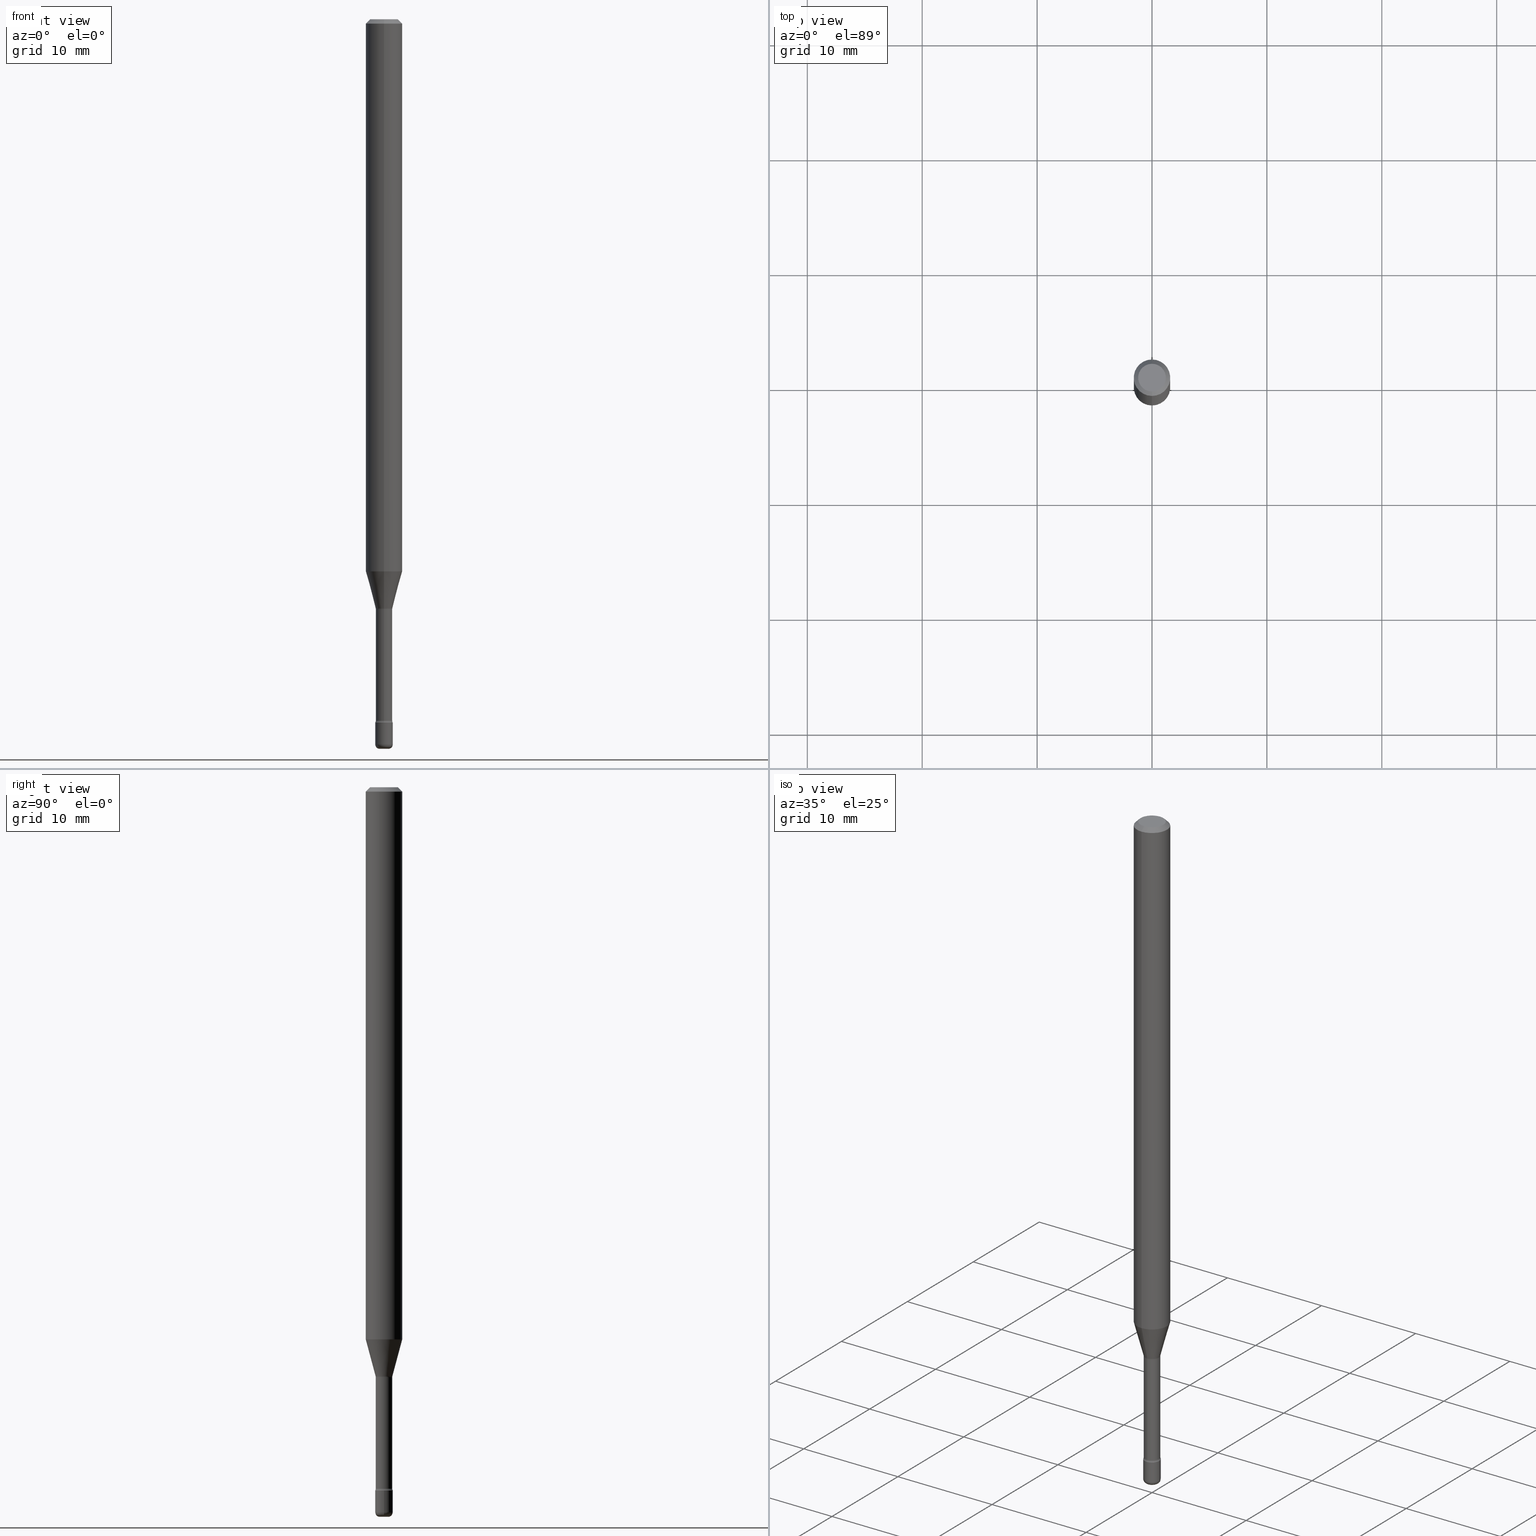
[diagram: canonical four-view strip — front | top / right | iso, engineering-drawing reading convention]
A machine part, canonical four-view strip (front | top / right | iso — engineering-drawing reading convention). The complete STEP part file that produces these views, byte-faithful:
ISO-10303-21;
HEADER;
FILE_DESCRIPTION (( 'STEP AP203' ),
    '1' );
FILE_NAME ('08930.STEP',
    '2024-03-06T20:11:20',
    ( '' ),
    ( '' ),
    'SwSTEP 2.0',
    'SolidWorks 2023',
    '' );
FILE_SCHEMA (( 'CONFIG_CONTROL_DESIGN' ));
ENDSEC;

DATA;
#1 = EDGE_LOOP ( 'NONE', ( #109, #43 ) ) ;
#2 = CARTESIAN_POINT ( 'NONE',  ( 1.047444401653551349E-16, 0.01499999999999127379, -2.500000000000000000 ) ) ;
#3 = ORIENTED_EDGE ( 'NONE', *, *, #47, .T. ) ;
#4 = FACE_OUTER_BOUND ( 'NONE', #403, .T. ) ;
#5 = PERSON_AND_ORGANIZATION ( #207, #392 ) ;
#6 = ORIENTED_EDGE ( 'NONE', *, *, #490, .F. ) ;
#7 = EDGE_CURVE ( 'NONE', #286, #91, #39, .T. ) ;
#8 = CARTESIAN_POINT ( 'NONE',  ( 0.000000000000000000, 0.000000000000000000, 0.000000000000000000 ) ) ;
#9 = PERSON_AND_ORGANIZATION ( #207, #392 ) ;
#10 = ORIENTED_EDGE ( 'NONE', *, *, #254, .F. ) ;
#11 = AXIS2_PLACEMENT_3D ( 'NONE', #358, #279, #313 ) ;
#12 = CIRCLE ( 'NONE', #181, 0.04749999999999998668 ) ;
#13 = CARTESIAN_POINT ( 'NONE',  ( 5.893641306739720749E-29, -8.414381978262906701E-15, -2.410000000000000142 ) ) ;
#14 = ORIENTED_EDGE ( 'NONE', *, *, #246, .F. ) ;
#15 = DIRECTION ( 'NONE',  ( 4.937700262164548831E-15, 0.7071067811865452413, -0.7071067811865497932 ) ) ;
#16 = ORIENTED_EDGE ( 'NONE', *, *, #51, .F. ) ;
#17 = CARTESIAN_POINT ( 'NONE',  ( 6.113672015462842613E-29, -8.728703347107864943E-15, -2.500000000000000000 ) ) ;
#18 = ADVANCED_FACE ( 'NONE', ( #386 ), #465, .T. ) ;
#19 = ORIENTED_EDGE ( 'NONE', *, *, #350, .T. ) ;
#20 = FACE_OUTER_BOUND ( 'NONE', #273, .T. ) ;
#21 = SECURITY_CLASSIFICATION ( '', '', #221 ) ;
#22 = CALENDAR_DATE ( 2024, 6, 3 ) ;
#23 = DIRECTION ( 'NONE',  ( 1.000000000000000000, -6.982962677686266711E-15, 4.876176775795935793E-29 ) ) ;
#24 = DIRECTION ( 'NONE',  ( -1.000000000000000000, 7.105427357600996337E-15, 0.000000000000000000 ) ) ;
#25 = DIRECTION ( 'NONE',  ( -6.982962677686265922E-15, -1.000000000000000000, 3.483106191921935554E-15 ) ) ;
#26 = DIRECTION ( 'NONE',  ( -2.445468806185136597E-29, 3.491481338843145583E-15, 1.000000000000000000 ) ) ;
#27 = DIRECTION ( 'NONE',  ( 6.982962677686265922E-15, 1.000000000000000000, -3.491444804258467311E-15 ) ) ;
#28 = EDGE_CURVE ( 'NONE', #225, #93, #94, .T. ) ;
#29 = APPROVAL_STATUS ( 'not_yet_approved' ) ;
#30 = CARTESIAN_POINT ( 'NONE',  ( 4.944676269635571097E-29, -7.059687238041231398E-15, -2.021974787463811207 ) ) ;
#31 = DIRECTION ( 'NONE',  ( 1.000000000000000000, -6.982962677686265922E-15, 4.876176775795935793E-29 ) ) ;
#32 = PRODUCT ( '08930', '08930', '', ( #189 ) ) ;
#33 = TOROIDAL_SURFACE ( 'NONE', #418, 0.04320000000000001616, 0.01499999999999994740 ) ;
#34 = CIRCLE ( 'NONE', #173, 0.02999999999999999889 ) ;
#35 = CARTESIAN_POINT ( 'NONE',  ( 5.893641306739720749E-29, -8.414381978262906701E-15, -2.410000000000000142 ) ) ;
#36 = CYLINDRICAL_SURFACE ( 'NONE', #438, 0.06250000000000000000 ) ;
#37 = EDGE_CURVE ( 'NONE', #236, #427, #355, .T. ) ;
#38 = DIRECTION ( 'NONE',  ( -6.982962677686266711E-15, -1.000000000000000000, 3.491444804258465733E-15 ) ) ;
#39 = CIRCLE ( 'NONE', #172, 0.06250000000000000000 ) ;
#40 = DIRECTION ( 'NONE',  ( -2.445494318149261734E-29, 3.491444804258467311E-15, 1.000000000000000000 ) ) ;
#41 = PRODUCT_RELATED_PRODUCT_CATEGORY ( 'detail', '', ( #32 ) ) ;
#42 = PERSON_AND_ORGANIZATION_ROLE ( 'design_supplier' ) ;
#43 = ORIENTED_EDGE ( 'NONE', *, *, #464, .F. ) ;
#44 = COORDINATED_UNIVERSAL_TIME_OFFSET ( 5, 0, .BEHIND. ) ;
#45 = EDGE_LOOP ( 'NONE', ( #232, #162 ) ) ;
#46 = FACE_OUTER_BOUND ( 'NONE', #270, .T. ) ;
#47 = EDGE_CURVE ( 'NONE', #531, #427, #249, .T. ) ;
#48 = ORIENTED_EDGE ( 'NONE', *, *, #268, .T. ) ;
#49 = DIRECTION ( 'NONE',  ( -2.445494318149261734E-29, 3.491444804258467311E-15, 1.000000000000000000 ) ) ;
#50 = ORIENTED_EDGE ( 'NONE', *, *, #335, .F. ) ;
#51 = EDGE_CURVE ( 'NONE', #411, #203, #425, .T. ) ;
#52 = CARTESIAN_POINT ( 'NONE',  ( 5.876218125076356369E-29, -8.389506812272643488E-15, -2.402875394747777893 ) ) ;
#53 = CALENDAR_DATE ( 2024, 6, 3 ) ;
#54 = ORIENTED_EDGE ( 'NONE', *, *, #539, .T. ) ;
#55 = FACE_OUTER_BOUND ( 'NONE', #528, .T. ) ;
#56 = DIRECTION ( 'NONE',  ( -6.982962677686265922E-15, -1.000000000000000000, 4.370956789862821150E-15 ) ) ;
#57 = CONICAL_SURFACE ( 'NONE', #391, 0.02871111260566398468, 0.2617993877991500740 ) ;
#58 = LOCAL_TIME ( 15, 11, 20.00000000000000000, #538 ) ;
#59 = EDGE_CURVE ( 'NONE', #344, #236, #84, .T. ) ;
#60 = ORIENTED_EDGE ( 'NONE', *, *, #284, .T. ) ;
#61 = APPLICATION_CONTEXT ( 'configuration controlled 3d designs of mechanical parts and assemblies' ) ;
#62 = VERTEX_POINT ( 'NONE', #100 ) ;
#63 = COORDINATED_UNIVERSAL_TIME_OFFSET ( 5, 0, .BEHIND. ) ;
#64 = CARTESIAN_POINT ( 'NONE',  ( 0.000000000000000000, 0.000000000000000000, 0.000000000000000000 ) ) ;
#65 = CARTESIAN_POINT ( 'NONE',  ( -1.169113584055446105E-44, 1.669184350826100908E-30, 4.780733988912460139E-16 ) ) ;
#66 = AXIS2_PLACEMENT_3D ( 'NONE', #455, #380, #31 ) ;
#67 = CARTESIAN_POINT ( 'NONE',  ( 4.935233746620405795E-29, -7.046058579878147233E-15, -2.018092501787273285 ) ) ;
#68 = CIRCLE ( 'NONE', #95, 0.01500000000000000291 ) ;
#69 = CARTESIAN_POINT ( 'NONE',  ( 5.876156823005487003E-29, -8.389594600327222537E-15, -2.402875394747777893 ) ) ;
#70 = CARTESIAN_POINT ( 'NONE',  ( 6.076989983370064174E-29, -8.676331127025216680E-15, -2.484999999999999876 ) ) ;
#71 = EDGE_CURVE ( 'NONE', #329, #460, #444, .T. ) ;
#72 = CARTESIAN_POINT ( 'NONE',  ( -0.02999999999999999889, -8.332237756090568145E-15, -2.410000000000000142 ) ) ;
#73 = ADVANCED_FACE ( 'NONE', ( #342 ), #230, .F. ) ;
#74 = DATE_TIME_ROLE ( 'classification_date' ) ;
#75 = DIRECTION ( 'NONE',  ( -2.445468806185136877E-29, 3.491481338843145188E-15, 1.000000000000000000 ) ) ;
#76 = CARTESIAN_POINT ( 'NONE',  ( -4.364351673553912750E-16, -0.06250000000000005551, -0.01499999999999981036 ) ) ;
#77 = VECTOR ( 'NONE', #188, 39.37007874015748143 ) ;
#78 = CC_DESIGN_APPROVAL ( #89, ( #21 ) ) ;
#79 = EDGE_CURVE ( 'NONE', #62, #361, #493, .T. ) ;
#80 = DIRECTION ( 'NONE',  ( -2.445494318149261734E-29, 3.491444804258467311E-15, 1.000000000000000000 ) ) ;
#81 = DIRECTION ( 'NONE',  ( -4.851104656540965064E-15, -0.7071067811865501263, -0.7071067811865449082 ) ) ;
#82 = DIRECTION ( 'NONE',  ( -6.982962677686266711E-15, -1.000000000000000000, 0.000000000000000000 ) ) ;
#83 = DIRECTION ( 'NONE',  ( -2.445494318149261734E-29, 3.491444804258467311E-15, 1.000000000000000000 ) ) ;
#84 = CIRCLE ( 'NONE', #375, 0.01500000000000000291 ) ;
#85 = FACE_OUTER_BOUND ( 'NONE', #244, .T. ) ;
#86 = AXIS2_PLACEMENT_3D ( 'NONE', #516, #80, #38 ) ;
#87 = APPROVAL_DATE_TIME ( #571, #197 ) ;
#88 = ORIENTED_EDGE ( 'NONE', *, *, #37, .F. ) ;
#89 = APPROVAL ( #29, 'UNSPECIFIED' ) ;
#90 = APPLICATION_PROTOCOL_DEFINITION ( 'international standard', 'config_control_design', 1994, #61 ) ;
#91 = VERTEX_POINT ( 'NONE', #415 ) ;
#92 = CARTESIAN_POINT ( 'NONE',  ( 4.944727854183811363E-29, -7.059613366032142190E-15, -2.021974787463811207 ) ) ;
#93 = VERTEX_POINT ( 'NONE', #327 ) ;
#94 = CIRCLE ( 'NONE', #452, 0.01500000000000001853 ) ;
#95 = AXIS2_PLACEMENT_3D ( 'NONE', #17, #340, #543 ) ;
#96 = VERTEX_POINT ( 'NONE', #512 ) ;
#97 = CARTESIAN_POINT ( 'NONE',  ( 3.668241477223899538E-31, -5.237167206387711025E-17, -0.01500000000000002720 ) ) ;
#98 = CALENDAR_DATE ( 2024, 6, 3 ) ;
#99 = ORIENTED_EDGE ( 'NONE', *, *, #121, .F. ) ;
#100 = CARTESIAN_POINT ( 'NONE',  ( 3.240469674128031254E-16, 0.02871111260565693823, -2.018092501787273285 ) ) ;
#101 = ORIENTED_EDGE ( 'NONE', *, *, #121, .T. ) ;
#102 = ADVANCED_FACE ( 'NONE', ( #239 ), #180, .F. ) ;
#103 = CONICAL_SURFACE ( 'NONE', #437, 0.02871111260566398468, 0.2617993877991500740 ) ;
#104 = DIRECTION ( 'NONE',  ( -6.982962677686267499E-15, -1.000000000000000000, 0.000000000000000000 ) ) ;
#105 = CIRCLE ( 'NONE', #503, 0.02820000000000006876 ) ;
#106 = CARTESIAN_POINT ( 'NONE',  ( -4.364351673553916201E-16, -0.06250000000000000000, 6.962886991574002702E-16 ) ) ;
#107 = CIRCLE ( 'NONE', #561, 0.02999999999999999889 ) ;
#108 = ORIENTED_EDGE ( 'NONE', *, *, #79, .T. ) ;
#109 = ORIENTED_EDGE ( 'NONE', *, *, #114, .F. ) ;
#110 = LINE ( 'NONE', #106, #364 ) ;
#111 = DIRECTION ( 'NONE',  ( -1.000000000000000000, 6.982962677686265922E-15, -4.876176775795935793E-29 ) ) ;
#112 = ORIENTED_EDGE ( 'NONE', *, *, #186, .F. ) ;
#113 = CARTESIAN_POINT ( 'NONE',  ( 2.131628207280887687E-16, 0.02999999999999155426, -2.410000000000000142 ) ) ;
#114 = EDGE_CURVE ( 'NONE', #379, #332, #347, .T. ) ;
#115 = AXIS2_PLACEMENT_3D ( 'NONE', #64, #241, #23 ) ;
#116 = CARTESIAN_POINT ( 'NONE',  ( 5.876156823005487003E-29, -8.389594600327222537E-15, -2.402875394747777893 ) ) ;
#117 = DIRECTION ( 'NONE',  ( -2.445494318149261734E-29, 3.491444804258467311E-15, 1.000000000000000000 ) ) ;
#118 = DIRECTION ( 'NONE',  ( -6.982962677686261977E-15, -1.000000000000000000, 0.000000000000000000 ) ) ;
#119 = ADVANCED_FACE ( 'NONE', ( #167 ), #33, .F. ) ;
#120 = CARTESIAN_POINT ( 'NONE',  ( 3.668241477223899538E-31, -5.237167206387711025E-17, -0.01500000000000002720 ) ) ;
#121 = EDGE_CURVE ( 'NONE', #62, #286, #209, .T. ) ;
#122 = DIRECTION ( 'NONE',  ( -6.982962677686266711E-15, -1.000000000000000000, 3.491444804258467311E-15 ) ) ;
#123 = CIRCLE ( 'NONE', #308, 0.03000000000000000583 ) ;
#124 = AXIS2_PLACEMENT_3D ( 'NONE', #211, #480, #556 ) ;
#125 = DIRECTION ( 'NONE',  ( -2.445494318149261734E-29, 3.491444804258467311E-15, 1.000000000000000000 ) ) ;
#126 = DIRECTION ( 'NONE',  ( -1.807323732225328562E-15, -0.2588190451025179639, 0.9659258262890690894 ) ) ;
#127 = DIRECTION ( 'NONE',  ( -6.982962677686265133E-15, -1.000000000000000000, 0.000000000000000000 ) ) ;
#128 = DIRECTION ( 'NONE',  ( -2.445494318149261734E-29, 3.491444804258467311E-15, 1.000000000000000000 ) ) ;
#129 = ORIENTED_EDGE ( 'NONE', *, *, #284, .F. ) ;
#130 = EDGE_CURVE ( 'NONE', #427, #531, #123, .T. ) ;
#131 = AXIS2_PLACEMENT_3D ( 'NONE', #525, #449, #141 ) ;
#132 = APPROVAL_PERSON_ORGANIZATION ( #9, #197, #192 ) ;
#133 = PERSON_AND_ORGANIZATION_ROLE ( 'classification_officer' ) ;
#134 = VERTEX_POINT ( 'NONE', #72 ) ;
#135 = DIRECTION ( 'NONE',  ( -2.445468806185136597E-29, 3.491481338843145583E-15, 1.000000000000000000 ) ) ;
#136 = ORIENTED_EDGE ( 'NONE', *, *, #71, .T. ) ;
#137 = DIRECTION ( 'NONE',  ( -2.445494318149261734E-29, 3.491444804258467311E-15, 1.000000000000000000 ) ) ;
#138 = ADVANCED_FACE ( 'NONE', ( #55 ), #515, .T. ) ;
#139 = DIRECTION ( 'NONE',  ( 0.000000000000000000, 0.000000000000000000, 1.000000000000000000 ) ) ;
#140 = ORIENTED_EDGE ( 'NONE', *, *, #350, .F. ) ;
#141 = DIRECTION ( 'NONE',  ( -6.982962677686265133E-15, -1.000000000000000000, 0.000000000000000000 ) ) ;
#142 = AXIS2_PLACEMENT_3D ( 'NONE', #70, #26, #208 ) ;
#143 = DIRECTION ( 'NONE',  ( -6.982962677686265922E-15, -1.000000000000000000, 0.000000000000000000 ) ) ;
#144 = VECTOR ( 'NONE', #75, 39.37007874015748143 ) ;
#145 = VERTEX_POINT ( 'NONE', #163 ) ;
#146 = CARTESIAN_POINT ( 'NONE',  ( 5.893579822906179826E-29, -8.414470026611981678E-15, -2.410000000000000142 ) ) ;
#147 = COORDINATED_UNIVERSAL_TIME_OFFSET ( 5, 0, .BEHIND. ) ;
#148 = ORIENTED_EDGE ( 'NONE', *, *, #28, .T. ) ;
#149 = EDGE_CURVE ( 'NONE', #329, #379, #559, .T. ) ;
#150 = ORIENTED_EDGE ( 'NONE', *, *, #37, .T. ) ;
#151 = CALENDAR_DATE ( 2024, 6, 3 ) ;
#152 = AXIS2_PLACEMENT_3D ( 'NONE', #13, #281, #143 ) ;
#153 = EDGE_LOOP ( 'NONE', ( #229, #54, #16, #140 ) ) ;
#154 = AXIS2_PLACEMENT_3D ( 'NONE', #424, #301, #545 ) ;
#155 = DIRECTION ( 'NONE',  ( -6.982962677686266711E-15, -1.000000000000000000, 3.491444804258465733E-15 ) ) ;
#156 = ADVANCED_FACE ( 'NONE', ( #4 ), #202, .T. ) ;
#157 = EDGE_CURVE ( 'NONE', #460, #361, #304, .T. ) ;
#158 = ORIENTED_EDGE ( 'NONE', *, *, #59, .F. ) ;
#159 = CARTESIAN_POINT ( 'NONE',  ( 4.364351673553919652E-16, 0.06249999999999995143, -0.01500000000000024578 ) ) ;
#160 = CARTESIAN_POINT ( 'NONE',  ( 6.113672015462842613E-29, -8.728703347107864943E-15, -2.500000000000000000 ) ) ;
#161 = CC_DESIGN_PERSON_AND_ORGANIZATION_ASSIGNMENT ( #5, #402, ( #32 ) ) ;
#162 = ORIENTED_EDGE ( 'NONE', *, *, #558, .T. ) ;
#163 = CARTESIAN_POINT ( 'NONE',  ( -3.773273898774339776E-16, -0.04749999999999998668, 1.387527056123654977E-16 ) ) ;
#164 = FACE_OUTER_BOUND ( 'NONE', #194, .T. ) ;
#165 = AXIS2_PLACEMENT_3D ( 'NONE', #146, #196, #330 ) ;
#166 = AXIS2_PLACEMENT_3D ( 'NONE', #245, #252, #349 ) ;
#167 = FACE_OUTER_BOUND ( 'NONE', #462, .T. ) ;
#168 = DIRECTION ( 'NONE',  ( -6.982962677686265133E-15, -1.000000000000000000, 3.491444804258467311E-15 ) ) ;
#169 = EDGE_CURVE ( 'NONE', #134, #250, #362, .T. ) ;
#170 = CARTESIAN_POINT ( 'NONE',  ( 4.944727854183811363E-29, -7.059613366032142190E-15, -2.021974787463811207 ) ) ;
#171 = LINE ( 'NONE', #354, #309 ) ;
#172 = AXIS2_PLACEMENT_3D ( 'NONE', #544, #548, #56 ) ;
#173 = AXIS2_PLACEMENT_3D ( 'NONE', #220, #311, #555 ) ;
#174 = CARTESIAN_POINT ( 'NONE',  ( 4.626852402419585505E-29, -6.605780950137001921E-15, -1.891990657300387735 ) ) ;
#175 = CARTESIAN_POINT ( 'NONE',  ( 4.440892098501091590E-16, 0.06249999999999995143, -0.01500000000000024578 ) ) ;
#176 = ADVANCED_FACE ( 'NONE', ( #346 ), #533, .T. ) ;
#177 = LINE ( 'NONE', #307, #485 ) ;
#178 = ORIENTED_EDGE ( 'NONE', *, *, #335, .T. ) ;
#179 =( NAMED_UNIT ( * ) SI_UNIT ( $, .STERADIAN. ) SOLID_ANGLE_UNIT ( ) );
#180 = TOROIDAL_SURFACE ( 'NONE', #484, 0.04320000000000001616, 0.01499999999999994740 ) ;
#181 = AXIS2_PLACEMENT_3D ( 'NONE', #393, #125, #216 ) ;
#182 = DIRECTION ( 'NONE',  ( -6.982962677686265133E-15, -1.000000000000000000, 0.000000000000000000 ) ) ;
#183 = TOROIDAL_SURFACE ( 'NONE', #536, 0.04320000000000000229, 0.01500000000000002373 ) ;
#184 = PERSON_AND_ORGANIZATION_ROLE ( 'creator' ) ;
#185 = ORIENTED_EDGE ( 'NONE', *, *, #130, .T. ) ;
#186 = EDGE_CURVE ( 'NONE', #62, #225, #266, .T. ) ;
#187 = ORIENTED_EDGE ( 'NONE', *, *, #494, .T. ) ;
#188 = DIRECTION ( 'NONE',  ( -2.445494318149262015E-29, 3.491444804258467311E-15, 1.000000000000000000 ) ) ;
#189 = MECHANICAL_CONTEXT ( 'NONE', #201, 'mechanical' ) ;
#190 = ORIENTED_EDGE ( 'NONE', *, *, #317, .F. ) ;
#191 = DIRECTION ( 'NONE',  ( -2.445494318149261734E-29, 3.491444804258467311E-15, 1.000000000000000000 ) ) ;
#192 = APPROVAL_ROLE ( '' ) ;
#193 = CIRCLE ( 'NONE', #267, 0.02820000000000000284 ) ;
#194 = EDGE_LOOP ( 'NONE', ( #471, #374, #150, #511 ) ) ;
#195 = DIRECTION ( 'NONE',  ( -2.445468806185136877E-29, 3.491481338843145188E-15, 1.000000000000000000 ) ) ;
#196 = DIRECTION ( 'NONE',  ( -2.445468806185136597E-29, 3.491481338843145583E-15, 1.000000000000000000 ) ) ;
#197 = APPROVAL ( #526, 'UNSPECIFIED' ) ;
#198 = CARTESIAN_POINT ( 'NONE',  ( -3.016639876759972611E-16, -0.04320000000000705914, -2.021974787463810763 ) ) ;
#199 = ORIENTED_EDGE ( 'NONE', *, *, #464, .T. ) ;
#200 = DIRECTION ( 'NONE',  ( 7.105427357601001859E-15, 1.000000000000000000, -3.491481338843145583E-15 ) ) ;
#201 = APPLICATION_CONTEXT ( 'configuration controlled 3d designs of mechanical parts and assemblies' ) ;
#202 = CONICAL_SURFACE ( 'NONE', #519, 0.06250000000000000000, 0.7853981633974485010 ) ;
#203 = VERTEX_POINT ( 'NONE', #175 ) ;
#204 = ORIENTED_EDGE ( 'NONE', *, *, #317, .T. ) ;
#205 = FACE_OUTER_BOUND ( 'NONE', #486, .T. ) ;
#206 = DIRECTION ( 'NONE',  ( 1.000000000000000000, -6.982962677686266711E-15, 4.876176775795935793E-29 ) ) ;
#207 = PERSON ( 'UNSPECIFIED', 'UNSPECIFIED', 'UNSPECIFIED', ('UNSPECIFIED'), ('UNSPECIFIED'), ('UNSPECIFIED') ) ;
#208 = DIRECTION ( 'NONE',  ( 1.000000000000000000, -6.982962677686299054E-15, 0.000000000000000000 ) ) ;
#209 = LINE ( 'NONE', #473, #336 ) ;
#210 = CC_DESIGN_PERSON_AND_ORGANIZATION_ASSIGNMENT ( #269, #184, ( #278 ) ) ;
#211 = CARTESIAN_POINT ( 'NONE',  ( 4.944676269635571097E-29, -7.059687238041231398E-15, -2.021974787463811207 ) ) ;
#212 = CIRCLE ( 'NONE', #217, 0.02820000000000000284 ) ;
#213 = APPROVAL_PERSON_ORGANIZATION ( #497, #401, #231 ) ;
#214 = FACE_OUTER_BOUND ( 'NONE', #420, .T. ) ;
#215 = CARTESIAN_POINT ( 'NONE',  ( 2.094888803306469144E-16, 0.02999999999999158548, -2.410000000000000142 ) ) ;
#216 = DIRECTION ( 'NONE',  ( -6.982962677686265133E-15, -1.000000000000000000, 3.491444804258467311E-15 ) ) ;
#217 = AXIS2_PLACEMENT_3D ( 'NONE', #92, #274, #450 ) ;
#218 = TOROIDAL_SURFACE ( 'NONE', #124, 0.04320000000000000229, 0.01500000000000002373 ) ;
#219 = CC_DESIGN_DATE_AND_TIME_ASSIGNMENT ( #303, #74, ( #21 ) ) ;
#220 = CARTESIAN_POINT ( 'NONE',  ( 5.893579822906179826E-29, -8.414470026611981678E-15, -2.410000000000000142 ) ) ;
#221 = SECURITY_CLASSIFICATION_LEVEL ( 'unclassified' ) ;
#222 = ORIENTED_EDGE ( 'NONE', *, *, #169, .F. ) ;
#223 = DATE_AND_TIME ( #53, #58 ) ;
#224 = ADVANCED_FACE ( 'NONE', ( #85 ), #277, .T. ) ;
#225 = VERTEX_POINT ( 'NONE', #565 ) ;
#226 = LINE ( 'NONE', #237, #570 ) ;
#227 = CLOSED_SHELL ( 'NONE', ( #18, #238, #176, #261, #312, #138 ) ) ;
#228 = AXIS2_PLACEMENT_3D ( 'NONE', #291, #200, #24 ) ;
#229 = ORIENTED_EDGE ( 'NONE', *, *, #490, .T. ) ;
#230 = PLANE ( 'NONE',  #316 ) ;
#231 = APPROVAL_ROLE ( '' ) ;
#232 = ORIENTED_EDGE ( 'NONE', *, *, #439, .T. ) ;
#233 = ADVANCED_FACE ( 'NONE', ( #404 ), #57, .T. ) ;
#234 = DIRECTION ( 'NONE',  ( -6.982962677686266711E-15, -1.000000000000000000, 0.000000000000000000 ) ) ;
#235 = CARTESIAN_POINT ( 'NONE',  ( 0.000000000000000000, 0.000000000000000000, 0.000000000000000000 ) ) ;
#236 = VERTEX_POINT ( 'NONE', #569 ) ;
#237 = CARTESIAN_POINT ( 'NONE',  ( -0.03000000000000000583, 2.131628207280300972E-16, -1.475680527076471882E-30 ) ) ;
#238 = ADVANCED_FACE ( 'NONE', ( #370 ), #398, .T. ) ;
#239 = FACE_OUTER_BOUND ( 'NONE', #500, .T. ) ;
#240 = AXIS2_PLACEMENT_3D ( 'NONE', #443, #436, #168 ) ;
#241 = DIRECTION ( 'NONE',  ( -2.445468806185136597E-29, 3.491481338843145583E-15, 1.000000000000000000 ) ) ;
#242 = EDGE_LOOP ( 'NONE', ( #423, #48, #448, #10 ) ) ;
#243 = LINE ( 'NONE', #334, #144 ) ;
#244 = EDGE_LOOP ( 'NONE', ( #315, #508, #178, #276 ) ) ;
#245 = CARTESIAN_POINT ( 'NONE',  ( 6.076989983370064174E-29, -8.676331127025216680E-15, -2.484999999999999876 ) ) ;
#246 = EDGE_CURVE ( 'NONE', #225, #62, #469, .T. ) ;
#247 = ADVANCED_BREP_SHAPE_REPRESENTATION ( '08930', ( #406, #396, #348 ), #513 ) ;
#248 = SHAPE_DEFINITION_REPRESENTATION ( #560, #247 ) ;
#249 = CIRCLE ( 'NONE', #142, 0.03000000000000000583 ) ;
#250 = VERTEX_POINT ( 'NONE', #489 ) ;
#251 = CIRCLE ( 'NONE', #240, 0.04749999999999998668 ) ;
#252 = DIRECTION ( 'NONE',  ( -2.445468806185136597E-29, 3.491481338843145583E-15, 1.000000000000000000 ) ) ;
#253 = DIRECTION ( 'NONE',  ( -2.445468806185136597E-29, 3.491481338843145583E-15, 1.000000000000000000 ) ) ;
#254 = EDGE_CURVE ( 'NONE', #361, #93, #212, .T. ) ;
#255 = CARTESIAN_POINT ( 'NONE',  ( 0.01500000000000000291, -8.781075567190510050E-15, -2.484999999999999876 ) ) ;
#256 = DIRECTION ( 'NONE',  ( -2.445468806185136597E-29, 3.491481338843145583E-15, 1.000000000000000000 ) ) ;
#257 = PRODUCT_DEFINITION ( 'UNKNOWN', '', #278, #532 ) ;
#258 = DIRECTION ( 'NONE',  ( -2.445494318149262015E-29, 3.491444804258467311E-15, 1.000000000000000000 ) ) ;
#259 = CARTESIAN_POINT ( 'NONE',  ( -2.094888803305288318E-16, -0.03000000000000838801, -2.410000000000000142 ) ) ;
#260 = LOCAL_TIME ( 15, 11, 20.00000000000000000, #319 ) ;
#261 = ADVANCED_FACE ( 'NONE', ( #46 ), #410, .T. ) ;
#262 = CARTESIAN_POINT ( 'NONE',  ( -1.169113584055446105E-44, 1.669184350826100908E-30, 4.780733988912460139E-16 ) ) ;
#263 = LINE ( 'NONE', #523, #554 ) ;
#264 = ADVANCED_FACE ( 'NONE', ( #468 ), #103, .T. ) ;
#265 = CARTESIAN_POINT ( 'NONE',  ( 2.067679361062480290E-16, 0.02819999999999168311, -2.402875394747777893 ) ) ;
#266 = CIRCLE ( 'NONE', #475, 0.02871111260566398468 ) ;
#267 = AXIS2_PLACEMENT_3D ( 'NONE', #170, #40, #399 ) ;
#268 = EDGE_CURVE ( 'NONE', #460, #329, #105, .T. ) ;
#269 = PERSON_AND_ORGANIZATION ( #207, #392 ) ;
#270 = EDGE_LOOP ( 'NONE', ( #492, #158 ) ) ;
#271 = DIRECTION ( 'NONE',  ( -6.982962677686265133E-15, -1.000000000000000000, 0.000000000000000000 ) ) ;
#272 = APPROVAL_STATUS ( 'not_yet_approved' ) ;
#273 = EDGE_LOOP ( 'NONE', ( #136, #564, #367, #382 ) ) ;
#274 = DIRECTION ( 'NONE',  ( -2.445494318149261734E-29, 3.491444804258467311E-15, 1.000000000000000000 ) ) ;
#275 = LENGTH_MEASURE_WITH_UNIT ( LENGTH_MEASURE( 0.02539999999999999897 ), #373 );
#276 = ORIENTED_EDGE ( 'NONE', *, *, #507, .T. ) ;
#277 = CONICAL_SURFACE ( 'NONE', #11, 0.06250000000000000000, 0.7853981633974485010 ) ;
#278 = PRODUCT_DEFINITION_FORMATION_WITH_SPECIFIED_SOURCE ( 'ANY', '', #32, .NOT_KNOWN. ) ;
#279 = DIRECTION ( 'NONE',  ( 2.445494318149261734E-29, -3.491444804258467311E-15, -1.000000000000000000 ) ) ;
#280 = CARTESIAN_POINT ( 'NONE',  ( 4.935233746620405795E-29, -7.046058579878147233E-15, -2.018092501787273285 ) ) ;
#281 = DIRECTION ( 'NONE',  ( -2.445494318149261734E-29, 3.491444804258467311E-15, 1.000000000000000000 ) ) ;
#282 = APPROVAL_DATE_TIME ( #413, #401 ) ;
#283 = EDGE_LOOP ( 'NONE', ( #112, #108, #400, #524 ) ) ;
#284 = EDGE_CURVE ( 'NONE', #531, #134, #226, .T. ) ;
#285 = DIRECTION ( 'NONE',  ( -6.982962677686265922E-15, -1.000000000000000000, 3.491444804258467311E-15 ) ) ;
#286 = VERTEX_POINT ( 'NONE', #549 ) ;
#287 = ADVANCED_FACE ( 'NONE', ( #20 ), #514, .T. ) ;
#288 = AXIS2_PLACEMENT_3D ( 'NONE', #52, #49, #234 ) ;
#289 = TOROIDAL_SURFACE ( 'NONE', #166, 0.01500000000000000291, 0.01500000000000039843 ) ;
#290 = ORIENTED_EDGE ( 'NONE', *, *, #149, .T. ) ;
#291 = CARTESIAN_POINT ( 'NONE',  ( -0.01500000000000000291, -8.569749716661202346E-15, -2.484999999999999876 ) ) ;
#292 = ORIENTED_EDGE ( 'NONE', *, *, #385, .F. ) ;
#293 = APPROVAL_ROLE ( '' ) ;
#294 = ORIENTED_EDGE ( 'NONE', *, *, #567, .T. ) ;
#295 = DIRECTION ( 'NONE',  ( -2.445494318149262015E-29, 3.491444804258467311E-15, 1.000000000000000000 ) ) ;
#296 = CARTESIAN_POINT ( 'NONE',  ( 3.316907271900975110E-16, 0.04749999999999998668, 5.964760994839002447E-17 ) ) ;
#297 = APPROVAL_DATE_TIME ( #435, #89 ) ;
#298 = AXIS2_PLACEMENT_3D ( 'NONE', #430, #541, #25 ) ;
#299 = EDGE_LOOP ( 'NONE', ( #99, #454, #417, #568 ) ) ;
#300 = CIRCLE ( 'NONE', #409, 0.01499999999999995087 ) ;
#301 = DIRECTION ( 'NONE',  ( -2.445494318149261734E-29, 3.491444804258467311E-15, 1.000000000000000000 ) ) ;
#302 = DIRECTION ( 'NONE',  ( 1.000000000000000000, -6.982962677686299054E-15, 0.000000000000000000 ) ) ;
#303 = DATE_AND_TIME ( #151, #260 ) ;
#304 = LINE ( 'NONE', #551, #77 ) ;
#305 = CC_DESIGN_PERSON_AND_ORGANIZATION_ASSIGNMENT ( #416, #456, ( #257 ) ) ;
#306 = FACE_OUTER_BOUND ( 'NONE', #153, .T. ) ;
#307 = CARTESIAN_POINT ( 'NONE',  ( -2.004886277601499384E-16, -0.02871111260567103113, -2.018092501787273285 ) ) ;
#308 = AXIS2_PLACEMENT_3D ( 'NONE', #496, #253, #302 ) ;
#309 = VECTOR ( 'NONE', #520, 39.37007874015748143 ) ;
#310 = DIRECTION ( 'NONE',  ( -6.982962677686265922E-15, -1.000000000000000000, 0.000000000000000000 ) ) ;
#311 = DIRECTION ( 'NONE',  ( -2.445468806185136597E-29, 3.491481338843145583E-15, 1.000000000000000000 ) ) ;
#312 = ADVANCED_FACE ( 'NONE', ( #164 ), #289, .T. ) ;
#313 = DIRECTION ( 'NONE',  ( 6.982962677686265922E-15, 1.000000000000000000, -3.483106191921935554E-15 ) ) ;
#314 = DIRECTION ( 'NONE',  ( -2.445494318149261734E-29, 3.491444804258467311E-15, 1.000000000000000000 ) ) ;
#315 = ORIENTED_EDGE ( 'NONE', *, *, #501, .F. ) ;
#316 = AXIS2_PLACEMENT_3D ( 'NONE', #296, #552, #27 ) ;
#317 = EDGE_CURVE ( 'NONE', #427, #250, #243, .T. ) ;
#318 = LOCAL_TIME ( 15, 11, 20.00000000000000000, #44 ) ;
#319 = COORDINATED_UNIVERSAL_TIME_OFFSET ( 5, 0, .BEHIND. ) ;
#320 = ORIENTED_EDGE ( 'NONE', *, *, #246, .T. ) ;
#321 = DIRECTION ( 'NONE',  ( 1.000000000000000000, -6.982962677686271444E-15, 4.883557194083114583E-29 ) ) ;
#322 = ORIENTED_EDGE ( 'NONE', *, *, #388, .F. ) ;
#323 = ADVANCED_FACE ( 'NONE', ( #205 ), #509, .T. ) ;
#324 = EDGE_LOOP ( 'NONE', ( #185, #60, #322, #190 ) ) ;
#325 = AXIS2_PLACEMENT_3D ( 'NONE', #537, #434, #118 ) ;
#326 = AXIS2_PLACEMENT_3D ( 'NONE', #120, #557, #483 ) ;
#327 = CARTESIAN_POINT ( 'NONE',  ( -1.969195475107032506E-16, -0.02820000000000706317, -2.021974787463811207 ) ) ;
#328 = CC_DESIGN_PERSON_AND_ORGANIZATION_ASSIGNMENT ( #566, #133, ( #21 ) ) ;
#329 = VERTEX_POINT ( 'NONE', #428 ) ;
#330 = DIRECTION ( 'NONE',  ( 1.000000000000000000, -6.982962677686268288E-15, 0.000000000000000000 ) ) ;
#331 = CALENDAR_DATE ( 2024, 6, 3 ) ;
#332 = VERTEX_POINT ( 'NONE', #113 ) ;
#333 = ORIENTED_EDGE ( 'NONE', *, *, #149, .F. ) ;
#334 = CARTESIAN_POINT ( 'NONE',  ( 0.03000000000000000583, -2.094888803305880457E-16, 1.462853032738781053E-30 ) ) ;
#335 = EDGE_CURVE ( 'NONE', #96, #203, #422, .T. ) ;
#336 = VECTOR ( 'NONE', #351, 39.37007874015748854 ) ;
#337 = CIRCLE ( 'NONE', #376, 0.06250000000000000000 ) ;
#338 = ORIENTED_EDGE ( 'NONE', *, *, #501, .T. ) ;
#339 = ORIENTED_EDGE ( 'NONE', *, *, #169, .T. ) ;
#340 = DIRECTION ( 'NONE',  ( -2.445468806185136597E-29, 3.491481338843145583E-15, 1.000000000000000000 ) ) ;
#341 = DIRECTION ( 'NONE',  ( 2.438088387897960049E-29, -3.491481338843145188E-15, -1.000000000000000000 ) ) ;
#342 = FACE_OUTER_BOUND ( 'NONE', #45, .T. ) ;
#343 = PERSON_AND_ORGANIZATION ( #207, #392 ) ;
#344 = VERTEX_POINT ( 'NONE', #472 ) ;
#345 = EDGE_CURVE ( 'NONE', #236, #344, #68, .T. ) ;
#346 = FACE_OUTER_BOUND ( 'NONE', #384, .T. ) ;
#347 = CIRCLE ( 'NONE', #152, 0.02999999999999999889 ) ;
#348 = AXIS2_PLACEMENT_3D ( 'NONE', #235, #139, #378 ) ;
#349 = DIRECTION ( 'NONE',  ( 1.000000000000000000, -6.982962677686271444E-15, 4.883557194083114583E-29 ) ) ;
#350 = EDGE_CURVE ( 'NONE', #91, #411, #110, .T. ) ;
#351 = DIRECTION ( 'NONE',  ( 1.839019923739598738E-15, 0.2588190451025247363, 0.9659258262890673130 ) ) ;
#352 = DIRECTION ( 'NONE',  ( -6.982962677686265922E-15, -1.000000000000000000, 3.491444804258467311E-15 ) ) ;
#353 = LINE ( 'NONE', #563, #440 ) ;
#354 = CARTESIAN_POINT ( 'NONE',  ( 4.440892098500625669E-16, 0.06250000000000000000, 2.598580986250918563E-16 ) ) ;
#355 = CIRCLE ( 'NONE', #535, 0.01500000000000039843 ) ;
#356 = LOCAL_TIME ( 15, 11, 20.00000000000000000, #63 ) ;
#357 = FACE_OUTER_BOUND ( 'NONE', #242, .T. ) ;
#358 = CARTESIAN_POINT ( 'NONE',  ( 3.668241477223899538E-31, -5.237167206387711025E-17, -0.01500000000000002720 ) ) ;
#359 = CARTESIAN_POINT ( 'NONE',  ( 0.03000000000000020012, -8.885820007355804997E-15, -2.484999999999999876 ) ) ;
#360 = ORIENTED_EDGE ( 'NONE', *, *, #130, .F. ) ;
#361 = VERTEX_POINT ( 'NONE', #383 ) ;
#362 = CIRCLE ( 'NONE', #165, 0.02999999999999999889 ) ;
#363 = AXIS2_PLACEMENT_3D ( 'NONE', #8, #256, #206 ) ;
#364 = VECTOR ( 'NONE', #295, 39.37007874015748143 ) ;
#365 = CARTESIAN_POINT ( 'NONE',  ( 6.076989983370064174E-29, -8.676331127025216680E-15, -2.484999999999999876 ) ) ;
#366 =( CONVERSION_BASED_UNIT ( 'INCH', #275 ) LENGTH_UNIT ( ) NAMED_UNIT ( #458 ) );
#367 = ORIENTED_EDGE ( 'NONE', *, *, #494, .F. ) ;
#368 = EDGE_CURVE ( 'NONE', #344, #531, #426, .T. ) ;
#369 = ORIENTED_EDGE ( 'NONE', *, *, #558, .F. ) ;
#370 = FACE_OUTER_BOUND ( 'NONE', #457, .T. ) ;
#371 = ADVANCED_FACE ( 'NONE', ( #506 ), #466, .F. ) ;
#372 = DIRECTION ( 'NONE',  ( 1.000000000000000000, -6.982962677686331397E-15, 0.000000000000000000 ) ) ;
#373 =( LENGTH_UNIT ( ) NAMED_UNIT ( * ) SI_UNIT ( $, .METRE. ) );
#374 = ORIENTED_EDGE ( 'NONE', *, *, #59, .T. ) ;
#375 = AXIS2_PLACEMENT_3D ( 'NONE', #160, #499, #372 ) ;
#376 = AXIS2_PLACEMENT_3D ( 'NONE', #174, #314, #478 ) ;
#377 = DIRECTION ( 'NONE',  ( -2.445494318149261734E-29, 3.491444804258467311E-15, 1.000000000000000000 ) ) ;
#378 = DIRECTION ( 'NONE',  ( 1.000000000000000000, 0.000000000000000000, 0.000000000000000000 ) ) ;
#379 = VERTEX_POINT ( 'NONE', #259 ) ;
#380 = DIRECTION ( 'NONE',  ( -2.438088387897960049E-29, 3.491481338843145188E-15, 1.000000000000000000 ) ) ;
#381 = EDGE_LOOP ( 'NONE', ( #320, #101, #6, #292 ) ) ;
#382 = ORIENTED_EDGE ( 'NONE', *, *, #521, .F. ) ;
#383 = CARTESIAN_POINT ( 'NONE',  ( 2.003730514844071660E-16, 0.02819999999999294252, -2.021974787463811207 ) ) ;
#384 = EDGE_LOOP ( 'NONE', ( #451, #339 ) ) ;
#385 = EDGE_CURVE ( 'NONE', #225, #91, #177, .T. ) ;
#386 = FACE_OUTER_BOUND ( 'NONE', #324, .T. ) ;
#387 = DIRECTION ( 'NONE',  ( 2.445494318149261734E-29, -3.491444804258467311E-15, -1.000000000000000000 ) ) ;
#388 = EDGE_CURVE ( 'NONE', #250, #134, #34, .T. ) ;
#389 = DIRECTION ( 'NONE',  ( -6.982962677686266711E-15, -1.000000000000000000, 3.491481338843145583E-15 ) ) ;
#390 = DIRECTION ( 'NONE',  ( 6.982962677686265922E-15, 1.000000000000000000, -3.483106191921935554E-15 ) ) ;
#391 = AXIS2_PLACEMENT_3D ( 'NONE', #530, #482, #182 ) ;
#392 = ORGANIZATION ( 'UNSPECIFIED', 'UNSPECIFIED', '' ) ;
#393 = CARTESIAN_POINT ( 'NONE',  ( 6.626289385845218521E-46, -9.456899470604124385E-32, -2.709092258991166066E-17 ) ) ;
#394 = DIRECTION ( 'NONE',  ( -2.445494318149261734E-29, 3.491444804258467311E-15, 1.000000000000000000 ) ) ;
#395 = CC_DESIGN_DATE_AND_TIME_ASSIGNMENT ( #223, #405, ( #257 ) ) ;
#396 = MANIFOLD_SOLID_BREP ( 'Body-Move/Copy2[2]', #553 ) ;
#397 = CARTESIAN_POINT ( 'NONE',  ( 3.069544618484221160E-16, 0.04319999999999162704, -2.402875394747777893 ) ) ;
#398 = TOROIDAL_SURFACE ( 'NONE', #408, 0.01500000000000000291, 0.01500000000000039843 ) ;
#399 = DIRECTION ( 'NONE',  ( -6.982962677686265133E-15, -1.000000000000000000, 0.000000000000000000 ) ) ;
#400 = ORIENTED_EDGE ( 'NONE', *, *, #254, .T. ) ;
#401 = APPROVAL ( #272, 'UNSPECIFIED' ) ;
#402 = PERSON_AND_ORGANIZATION_ROLE ( 'design_owner' ) ;
#403 = EDGE_LOOP ( 'NONE', ( #369, #338, #488, #50 ) ) ;
#404 = FACE_OUTER_BOUND ( 'NONE', #299, .T. ) ;
#405 = DATE_TIME_ROLE ( 'creation_date' ) ;
#406 = MANIFOLD_SOLID_BREP ( 'Body-Move/Copy2[1]', #227 ) ;
#407 = ORIENTED_EDGE ( 'NONE', *, *, #114, .T. ) ;
#408 = AXIS2_PLACEMENT_3D ( 'NONE', #365, #135, #321 ) ;
#409 = AXIS2_PLACEMENT_3D ( 'NONE', #397, #562, #522 ) ;
#410 = PLANE ( 'NONE',  #461 ) ;
#411 = VERTEX_POINT ( 'NONE', #76 ) ;
#412 = DIRECTION ( 'NONE',  ( 7.105427357601001859E-15, 1.000000000000000000, 0.000000000000000000 ) ) ;
#413 = DATE_AND_TIME ( #98, #318 ) ;
#414 = ORIENTED_EDGE ( 'NONE', *, *, #79, .F. ) ;
#415 = CARTESIAN_POINT ( 'NONE',  ( -4.364351673553456197E-16, -0.06250000000000664746, -1.891990657300387513 ) ) ;
#416 = PERSON_AND_ORGANIZATION ( #207, #392 ) ;
#417 = ORIENTED_EDGE ( 'NONE', *, *, #385, .T. ) ;
#418 = AXIS2_PLACEMENT_3D ( 'NONE', #69, #377, #419 ) ;
#419 = DIRECTION ( 'NONE',  ( -6.982962677686265922E-15, -1.000000000000000000, 3.491444804258467311E-15 ) ) ;
#420 = EDGE_LOOP ( 'NONE', ( #414, #14, #148, #187 ) ) ;
#421 = ORIENTED_EDGE ( 'NONE', *, *, #71, .F. ) ;
#422 = LINE ( 'NONE', #159, #470 ) ;
#423 = ORIENTED_EDGE ( 'NONE', *, *, #157, .F. ) ;
#424 = CARTESIAN_POINT ( 'NONE',  ( -1.169113584055446105E-44, 1.669184350826100908E-30, 4.780733988912460139E-16 ) ) ;
#425 = CIRCLE ( 'NONE', #298, 0.06250000000000000000 ) ;
#426 = CIRCLE ( 'NONE', #228, 0.01500000000000039843 ) ;
#427 = VERTEX_POINT ( 'NONE', #359 ) ;
#428 = CARTESIAN_POINT ( 'NONE',  ( -1.969195475106944252E-16, -0.02820000000000845788, -2.402875394747777893 ) ) ;
#429 = DIRECTION ( 'NONE',  ( -2.445494318149261734E-29, 3.491444804258467311E-15, 1.000000000000000000 ) ) ;
#430 = CARTESIAN_POINT ( 'NONE',  ( 3.668241477223899538E-31, -5.237167206387711025E-17, -0.01500000000000002720 ) ) ;
#431 = CC_DESIGN_PERSON_AND_ORGANIZATION_ASSIGNMENT ( #447, #42, ( #278 ) ) ;
#432 = DIRECTION ( 'NONE',  ( 1.000000000000000000, -6.982962677686211490E-15, 0.000000000000000000 ) ) ;
#433 = UNCERTAINTY_MEASURE_WITH_UNIT (LENGTH_MEASURE( 1.000000000000000082E-05 ), #366, 'distance_accuracy_value', 'NONE');
#434 = DIRECTION ( 'NONE',  ( -1.000000000000000000, 6.982962677686265922E-15, -4.883557194083112340E-29 ) ) ;
#435 = DATE_AND_TIME ( #22, #356 ) ;
#436 = DIRECTION ( 'NONE',  ( -2.445494318149261734E-29, 3.491444804258467311E-15, 1.000000000000000000 ) ) ;
#437 = AXIS2_PLACEMENT_3D ( 'NONE', #67, #429, #271 ) ;
#438 = AXIS2_PLACEMENT_3D ( 'NONE', #262, #128, #442 ) ;
#439 = EDGE_CURVE ( 'NONE', #96, #145, #251, .T. ) ;
#440 = VECTOR ( 'NONE', #81, 39.37007874015748143 ) ;
#441 = CYLINDRICAL_SURFACE ( 'NONE', #86, 0.02820000000000003407 ) ;
#442 = DIRECTION ( 'NONE',  ( -6.982962677686265922E-15, -1.000000000000000000, 3.491444804258466917E-15 ) ) ;
#443 = CARTESIAN_POINT ( 'NONE',  ( 6.626289385845218521E-46, -9.456899470604124385E-32, -2.709092258991166066E-17 ) ) ;
#444 = CIRCLE ( 'NONE', #288, 0.02820000000000006876 ) ;
#445 = CIRCLE ( 'NONE', #326, 0.06250000000000000000 ) ;
#446 = ADVANCED_FACE ( 'NONE', ( #357 ), #441, .T. ) ;
#447 = PERSON_AND_ORGANIZATION ( #207, #392 ) ;
#448 = ORIENTED_EDGE ( 'NONE', *, *, #521, .T. ) ;
#449 = DIRECTION ( 'NONE',  ( -2.445494318149261734E-29, 3.491444804258467311E-15, 1.000000000000000000 ) ) ;
#450 = DIRECTION ( 'NONE',  ( -6.982962677686265133E-15, -1.000000000000000000, 0.000000000000000000 ) ) ;
#451 = ORIENTED_EDGE ( 'NONE', *, *, #388, .T. ) ;
#452 = AXIS2_PLACEMENT_3D ( 'NONE', #198, #550, #104 ) ;
#453 = CC_DESIGN_APPROVAL ( #401, ( #257 ) ) ;
#454 = ORIENTED_EDGE ( 'NONE', *, *, #186, .T. ) ;
#455 = CARTESIAN_POINT ( 'NONE',  ( 5.893579822906179826E-29, -8.414470026611981678E-15, -2.410000000000000142 ) ) ;
#456 = PERSON_AND_ORGANIZATION_ROLE ( 'creator' ) ;
#457 = EDGE_LOOP ( 'NONE', ( #505, #498, #360, #88 ) ) ;
#458 = DIMENSIONAL_EXPONENTS ( 1.000000000000000000, 0.000000000000000000, 0.000000000000000000, 0.000000000000000000, 0.000000000000000000, 0.000000000000000000, 0.000000000000000000 ) ;
#459 = CARTESIAN_POINT ( 'NONE',  ( 3.069544618484126497E-16, 0.04319999999999293849, -2.021974787463811207 ) ) ;
#460 = VERTEX_POINT ( 'NONE', #265 ) ;
#461 = AXIS2_PLACEMENT_3D ( 'NONE', #2, #341, #111 ) ;
#462 = EDGE_LOOP ( 'NONE', ( #502, #294, #199, #333 ) ) ;
#463 = ORIENTED_EDGE ( 'NONE', *, *, #507, .F. ) ;
#464 = EDGE_CURVE ( 'NONE', #332, #379, #107, .T. ) ;
#465 = CYLINDRICAL_SURFACE ( 'NONE', #115, 0.03000000000000000583 ) ;
#466 = PLANE ( 'NONE',  #547 ) ;
#467 = ADVANCED_FACE ( 'NONE', ( #214 ), #218, .F. ) ;
#468 = FACE_OUTER_BOUND ( 'NONE', #381, .T. ) ;
#469 = CIRCLE ( 'NONE', #131, 0.02871111260566398468 ) ;
#470 = VECTOR ( 'NONE', #15, 39.37007874015748143 ) ;
#471 = ORIENTED_EDGE ( 'NONE', *, *, #368, .F. ) ;
#472 = CARTESIAN_POINT ( 'NONE',  ( -0.01500000000000000291, -8.542645121520517733E-15, -2.500000000000000000 ) ) ;
#473 = CARTESIAN_POINT ( 'NONE',  ( 2.040047249754971658E-16, 0.02871111260565693823, -2.018092501787273285 ) ) ;
#474 = DIRECTION ( 'NONE',  ( -2.445494318149261454E-29, 3.491444804258467311E-15, 1.000000000000000000 ) ) ;
#475 = AXIS2_PLACEMENT_3D ( 'NONE', #280, #137, #127 ) ;
#476 = CC_DESIGN_SECURITY_CLASSIFICATION ( #21, ( #278 ) ) ;
#477 = FACE_OUTER_BOUND ( 'NONE', #283, .T. ) ;
#478 = DIRECTION ( 'NONE',  ( -6.982962677686265922E-15, -1.000000000000000000, 4.370956789862821150E-15 ) ) ;
#479 = DIRECTION ( 'NONE',  ( -2.445494318149261734E-29, 3.491444804258467311E-15, 1.000000000000000000 ) ) ;
#480 = DIRECTION ( 'NONE',  ( -2.445494318149261734E-29, 3.491444804258467311E-15, 1.000000000000000000 ) ) ;
#481 = ADVANCED_FACE ( 'NONE', ( #477 ), #183, .F. ) ;
#482 = DIRECTION ( 'NONE',  ( -2.445494318149261734E-29, 3.491444804258467311E-15, 1.000000000000000000 ) ) ;
#483 = DIRECTION ( 'NONE',  ( -6.982962677686265922E-15, -1.000000000000000000, 3.483106191921935554E-15 ) ) ;
#484 = AXIS2_PLACEMENT_3D ( 'NONE', #116, #191, #285 ) ;
#485 = VECTOR ( 'NONE', #126, 39.37007874015748854 ) ;
#486 = EDGE_LOOP ( 'NONE', ( #540, #542, #19, #463 ) ) ;
#487 =( NAMED_UNIT ( * ) PLANE_ANGLE_UNIT ( ) SI_UNIT ( $, .RADIAN. ) );
#488 = ORIENTED_EDGE ( 'NONE', *, *, #51, .T. ) ;
#489 = CARTESIAN_POINT ( 'NONE',  ( 0.02999999999999999889, -8.623958906942569995E-15, -2.410000000000000142 ) ) ;
#490 = EDGE_CURVE ( 'NONE', #91, #286, #337, .T. ) ;
#491 = APPLICATION_PROTOCOL_DEFINITION ( 'international standard', 'config_control_design', 1994, #201 ) ;
#492 = ORIENTED_EDGE ( 'NONE', *, *, #345, .F. ) ;
#493 = CIRCLE ( 'NONE', #546, 0.01500000000000001853 ) ;
#494 = EDGE_CURVE ( 'NONE', #93, #361, #193, .T. ) ;
#495 = AXIS2_PLACEMENT_3D ( 'NONE', #65, #117, #155 ) ;
#496 = CARTESIAN_POINT ( 'NONE',  ( 6.076989983370064174E-29, -8.676331127025216680E-15, -2.484999999999999876 ) ) ;
#497 = PERSON_AND_ORGANIZATION ( #207, #392 ) ;
#498 = ORIENTED_EDGE ( 'NONE', *, *, #368, .T. ) ;
#499 = DIRECTION ( 'NONE',  ( -2.445468806185136597E-29, 3.491481338843145583E-15, 1.000000000000000000 ) ) ;
#500 = EDGE_LOOP ( 'NONE', ( #534, #421, #290, #407 ) ) ;
#501 = EDGE_CURVE ( 'NONE', #145, #411, #353, .T. ) ;
#502 = ORIENTED_EDGE ( 'NONE', *, *, #268, .F. ) ;
#503 = AXIS2_PLACEMENT_3D ( 'NONE', #518, #479, #82 ) ;
#504 = LOCAL_TIME ( 15, 11, 20.00000000000000000, #147 ) ;
#505 = ORIENTED_EDGE ( 'NONE', *, *, #345, .T. ) ;
#506 = FACE_OUTER_BOUND ( 'NONE', #1, .T. ) ;
#507 = EDGE_CURVE ( 'NONE', #203, #411, #445, .T. ) ;
#508 = ORIENTED_EDGE ( 'NONE', *, *, #439, .F. ) ;
#509 = CYLINDRICAL_SURFACE ( 'NONE', #154, 0.06250000000000000000 ) ;
#510 = DIRECTION ( 'NONE',  ( 1.000000000000000000, -7.105427357601001070E-15, 4.926315061122460309E-29 ) ) ;
#511 = ORIENTED_EDGE ( 'NONE', *, *, #47, .F. ) ;
#512 = CARTESIAN_POINT ( 'NONE',  ( 3.840629472727447874E-16, 0.04749999999999998668, -1.929345507921888190E-16 ) ) ;
#513 =( GEOMETRIC_REPRESENTATION_CONTEXT ( 3 ) GLOBAL_UNCERTAINTY_ASSIGNED_CONTEXT ( ( #433 ) ) GLOBAL_UNIT_ASSIGNED_CONTEXT ( ( #366, #487, #179 ) ) REPRESENTATION_CONTEXT ( 'NONE', 'WORKASPACE' ) );
#514 = CYLINDRICAL_SURFACE ( 'NONE', #495, 0.02820000000000003407 ) ;
#515 = CYLINDRICAL_SURFACE ( 'NONE', #363, 0.03000000000000000583 ) ;
#516 = CARTESIAN_POINT ( 'NONE',  ( -1.169113584055446105E-44, 1.669184350826100908E-30, 4.780733988912460139E-16 ) ) ;
#517 = CARTESIAN_POINT ( 'NONE',  ( -0.03000000000000020012, -8.463168306297186435E-15, -2.484999999999999876 ) ) ;
#518 = CARTESIAN_POINT ( 'NONE',  ( 5.876218125076356369E-29, -8.389506812272643488E-15, -2.402875394747777893 ) ) ;
#519 = AXIS2_PLACEMENT_3D ( 'NONE', #97, #387, #390 ) ;
#520 = DIRECTION ( 'NONE',  ( -2.445494318149262015E-29, 3.491444804258467311E-15, 1.000000000000000000 ) ) ;
#521 = EDGE_CURVE ( 'NONE', #329, #93, #263, .T. ) ;
#522 = DIRECTION ( 'NONE',  ( 7.105427357600997914E-15, 1.000000000000000000, 0.000000000000000000 ) ) ;
#523 = CARTESIAN_POINT ( 'NONE',  ( -1.969195475107529488E-16, -0.02820000000000003407, 5.765321423713349437E-16 ) ) ;
#524 = ORIENTED_EDGE ( 'NONE', *, *, #28, .F. ) ;
#525 = CARTESIAN_POINT ( 'NONE',  ( 4.935233746620405795E-29, -7.046058579878147233E-15, -2.018092501787273285 ) ) ;
#526 = APPROVAL_STATUS ( 'not_yet_approved' ) ;
#527 = APPROVAL_PERSON_ORGANIZATION ( #343, #89, #293 ) ;
#528 = EDGE_LOOP ( 'NONE', ( #129, #3, #204, #222 ) ) ;
#529 = ADVANCED_FACE ( 'NONE', ( #306 ), #36, .T. ) ;
#530 = CARTESIAN_POINT ( 'NONE',  ( 4.935233746620405795E-29, -7.046058579878147233E-15, -2.018092501787273285 ) ) ;
#531 = VERTEX_POINT ( 'NONE', #517 ) ;
#532 = DESIGN_CONTEXT ( 'detailed design', #61, 'design' ) ;
#533 = PLANE ( 'NONE',  #66 ) ;
#534 = ORIENTED_EDGE ( 'NONE', *, *, #567, .F. ) ;
#535 = AXIS2_PLACEMENT_3D ( 'NONE', #255, #389, #432 ) ;
#536 = AXIS2_PLACEMENT_3D ( 'NONE', #30, #83, #122 ) ;
#537 = CARTESIAN_POINT ( 'NONE',  ( -3.016639876759880413E-16, -0.04320000000000840529, -2.402875394747777449 ) ) ;
#538 = COORDINATED_UNIVERSAL_TIME_OFFSET ( 5, 0, .BEHIND. ) ;
#539 = EDGE_CURVE ( 'NONE', #286, #203, #171, .T. ) ;
#540 = ORIENTED_EDGE ( 'NONE', *, *, #539, .F. ) ;
#541 = DIRECTION ( 'NONE',  ( -2.445494318149261734E-29, 3.491444804258467311E-15, 1.000000000000000000 ) ) ;
#542 = ORIENTED_EDGE ( 'NONE', *, *, #7, .T. ) ;
#543 = DIRECTION ( 'NONE',  ( 1.000000000000000000, -6.982962677686331397E-15, 0.000000000000000000 ) ) ;
#544 = CARTESIAN_POINT ( 'NONE',  ( 4.626852402419585505E-29, -6.605780950137001921E-15, -1.891990657300387735 ) ) ;
#545 = DIRECTION ( 'NONE',  ( -6.982962677686265922E-15, -1.000000000000000000, 3.491444804258466917E-15 ) ) ;
#546 = AXIS2_PLACEMENT_3D ( 'NONE', #459, #510, #412 ) ;
#547 = AXIS2_PLACEMENT_3D ( 'NONE', #215, #474, #352 ) ;
#548 = DIRECTION ( 'NONE',  ( -2.445494318149261734E-29, 3.491444804258467311E-15, 1.000000000000000000 ) ) ;
#549 = CARTESIAN_POINT ( 'NONE',  ( 4.440892098501086659E-16, 0.06249999999999337336, -1.891990657300388179 ) ) ;
#550 = DIRECTION ( 'NONE',  ( -1.000000000000000000, 6.982962677686265922E-15, -4.883557194083112340E-29 ) ) ;
#551 = CARTESIAN_POINT ( 'NONE',  ( 2.003730514843484698E-16, 0.02820000000000003407, 3.796146554111571334E-16 ) ) ;
#552 = DIRECTION ( 'NONE',  ( 2.445494318149261454E-29, -3.491444804258467311E-15, -1.000000000000000000 ) ) ;
#553 = CLOSED_SHELL ( 'NONE', ( #481, #287, #119, #156, #529, #264, #233, #323, #224, #73, #371, #102, #446, #467 ) ) ;
#554 = VECTOR ( 'NONE', #258, 39.37007874015748143 ) ;
#555 = DIRECTION ( 'NONE',  ( 1.000000000000000000, -6.982962677686268288E-15, 0.000000000000000000 ) ) ;
#556 = DIRECTION ( 'NONE',  ( -6.982962677686266711E-15, -1.000000000000000000, 3.491444804258467311E-15 ) ) ;
#557 = DIRECTION ( 'NONE',  ( -2.445494318149261734E-29, 3.491444804258467311E-15, 1.000000000000000000 ) ) ;
#558 = EDGE_CURVE ( 'NONE', #145, #96, #12, .T. ) ;
#559 = CIRCLE ( 'NONE', #325, 0.01499999999999995087 ) ;
#560 = PRODUCT_DEFINITION_SHAPE ( 'NONE', 'NONE',  #257 ) ;
#561 = AXIS2_PLACEMENT_3D ( 'NONE', #35, #394, #310 ) ;
#562 = DIRECTION ( 'NONE',  ( 1.000000000000000000, -7.105427357601001070E-15, 4.926315061122460309E-29 ) ) ;
#563 = CARTESIAN_POINT ( 'NONE',  ( -4.287811248607203282E-16, -0.06250000000000005551, -0.01499999999999981036 ) ) ;
#564 = ORIENTED_EDGE ( 'NONE', *, *, #157, .T. ) ;
#565 = CARTESIAN_POINT ( 'NONE',  ( -2.004886277601499384E-16, -0.02871111260567103113, -2.018092501787273285 ) ) ;
#566 = PERSON_AND_ORGANIZATION ( #207, #392 ) ;
#567 = EDGE_CURVE ( 'NONE', #460, #332, #300, .T. ) ;
#568 = ORIENTED_EDGE ( 'NONE', *, *, #7, .F. ) ;
#569 = CARTESIAN_POINT ( 'NONE',  ( 0.01500000000000000291, -8.833447787273159890E-15, -2.500000000000000000 ) ) ;
#570 = VECTOR ( 'NONE', #195, 39.37007874015748143 ) ;
#571 = DATE_AND_TIME ( #331, #504 ) ;
#572 = CC_DESIGN_APPROVAL ( #197, ( #278 ) ) ;
ENDSEC;
END-ISO-10303-21;
